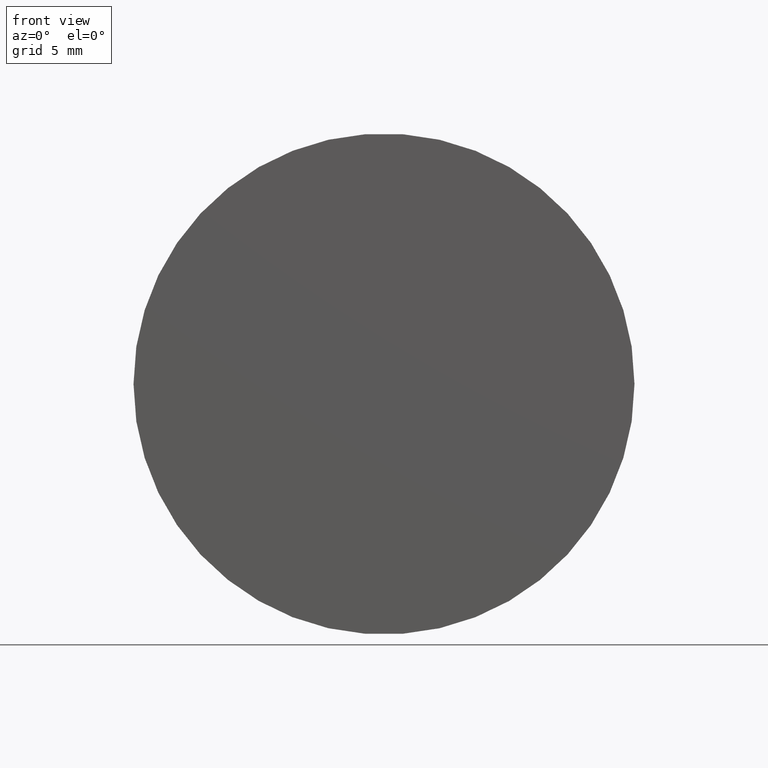
[diagram: clean part render]
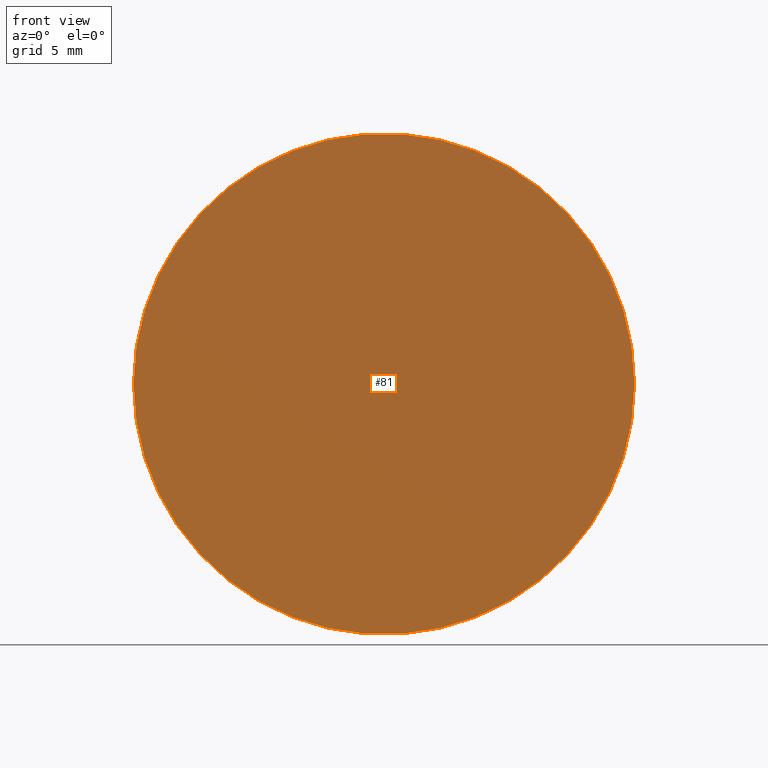
[diagram: same view with one face highlighted and labeled with its STEP entity id]
A machine part, front view. The second image highlights one B-rep face of the part: STEP entity #81.
In plain terms, the highlighted planar face has unit normal (0, 1, 0).
Its self-contained STEP definition (entity closure, byte-faithful):
#19=PLANE('',#95);
#30=FACE_OUTER_BOUND('',#41,.T.);
#41=EDGE_LOOP('',(#71));
#49=CIRCLE('',#96,13.5);
#55=VERTEX_POINT('',#143);
#61=EDGE_CURVE('',#55,#55,#49,.T.);
#71=ORIENTED_EDGE('',*,*,#61,.F.);
#81=ADVANCED_FACE('',(#30),#19,.F.);
#95=AXIS2_PLACEMENT_3D('',#142,#120,#121);
#96=AXIS2_PLACEMENT_3D('',#144,#122,#123);
#120=DIRECTION('center_axis',(0.,1.,0.));
#121=DIRECTION('ref_axis',(0.,0.,1.));
#122=DIRECTION('center_axis',(0.,1.,0.));
#123=DIRECTION('ref_axis',(1.,0.,0.));
#142=CARTESIAN_POINT('Origin',(0.,0.,0.));
#143=CARTESIAN_POINT('',(13.5,0.,0.));
#144=CARTESIAN_POINT('Origin',(0.,0.,0.));